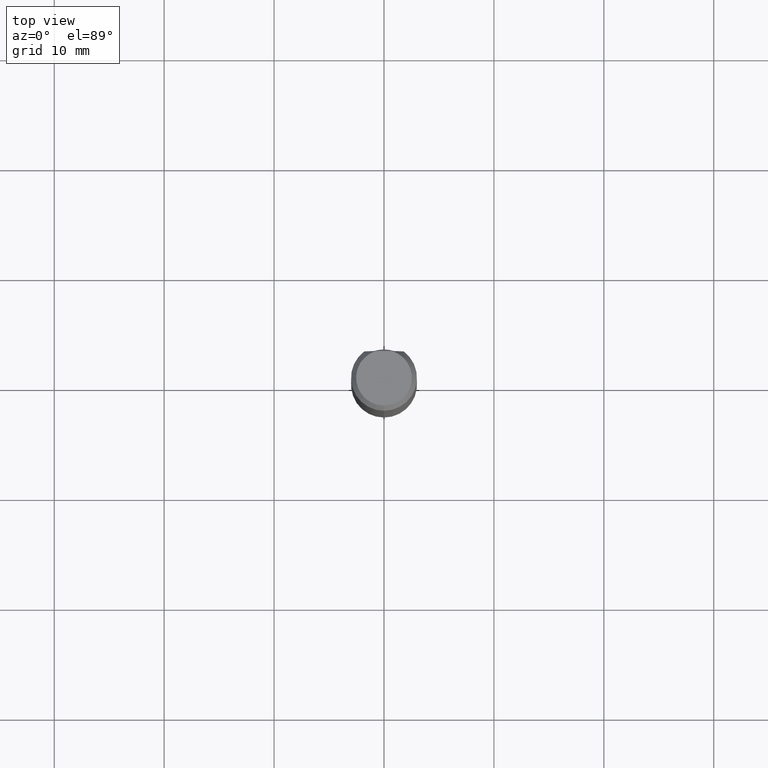
[diagram: clean part render]
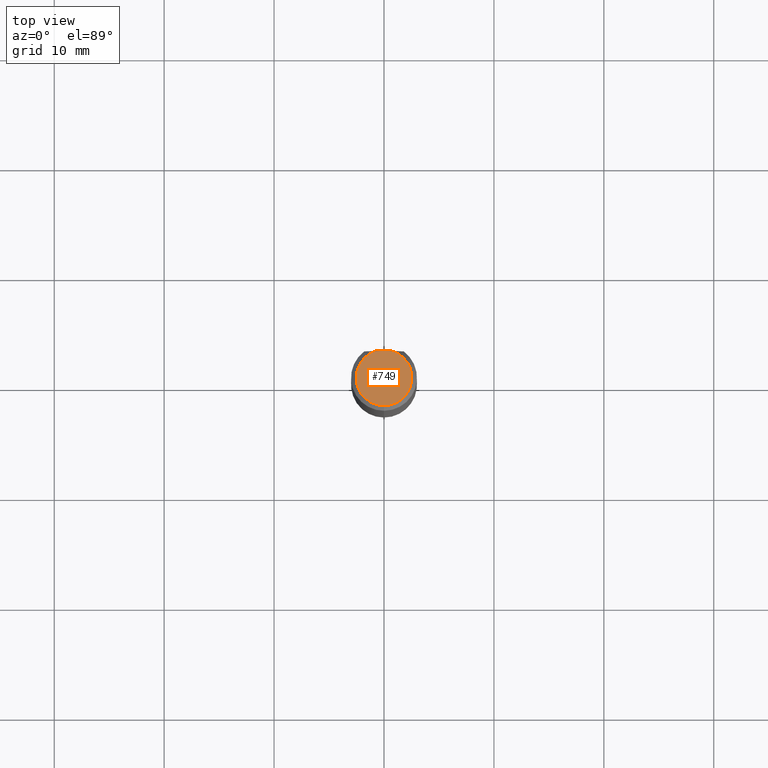
[diagram: same view with one face highlighted and labeled with its STEP entity id]
A machine part, top view. The second image highlights one B-rep face of the part: STEP entity #749.
In plain terms, the highlighted planar face has unit normal (-0, 0, 1).
Its self-contained STEP definition (entity closure, byte-faithful):
#367=VERTEX_POINT('',#943);
#431=VERTEX_POINT('',#1017);
#517=EDGE_CURVE('',#367,#741,#1108,.T.);
#741=VERTEX_POINT('',#1351);
#749=ADVANCED_FACE('',(#1359),#1360,.T.);
#761=EDGE_CURVE('',#431,#741,#1374,.T.);
#771=EDGE_CURVE('',#431,#367,#1384,.T.);
#943=CARTESIAN_POINT('',(3.10819761504259E-016,-2.5381197846483,0.0));
#1017=CARTESIAN_POINT('',(0.737618527549059,2.42857385085146,0.0));
#1108=CIRCLE('',#3878,2.5381197846483);
#1351=CARTESIAN_POINT('',(-0.737618527549059,2.42857385085146,0.0));
#1359=FACE_OUTER_BOUND('',#7192,.T.);
#1360=PLANE('',#7193);
#1374=LINE('',#7484,#7485);
#1384=CIRCLE('',#7497,2.5381197846483);
#3878=AXIS2_PLACEMENT_3D('',#9000,#9001,#9002);
#7192=EDGE_LOOP('',(#9231,#9232,#9233));
#7193=AXIS2_PLACEMENT_3D('',#9234,#9235,#9236);
#7484=CARTESIAN_POINT('',(-1.5,2.42857385085146,0.0));
#7485=VECTOR('',#9254,1.0);
#7497=AXIS2_PLACEMENT_3D('',#9258,#9259,#9260);
#9000=CARTESIAN_POINT('',(0.0,0.0,0.0));
#9001=DIRECTION('',(0.0,0.0,-1.0));
#9002=DIRECTION('',(0.0,1.0,0.0));
#9231=ORIENTED_EDGE('',*,*,#761,.T.);
#9232=ORIENTED_EDGE('',*,*,#517,.F.);
#9233=ORIENTED_EDGE('',*,*,#771,.F.);
#9234=CARTESIAN_POINT('',(0.0,1.26905989232415,0.0));
#9235=DIRECTION('',(-0.0,0.0,1.0));
#9236=DIRECTION('',(0.0,-1.0,0.0));
#9254=DIRECTION('',(-1.0,0.0,0.0));
#9258=CARTESIAN_POINT('',(0.0,0.0,0.0));
#9259=DIRECTION('',(0.0,0.0,-1.0));
#9260=DIRECTION('',(0.0,1.0,0.0));